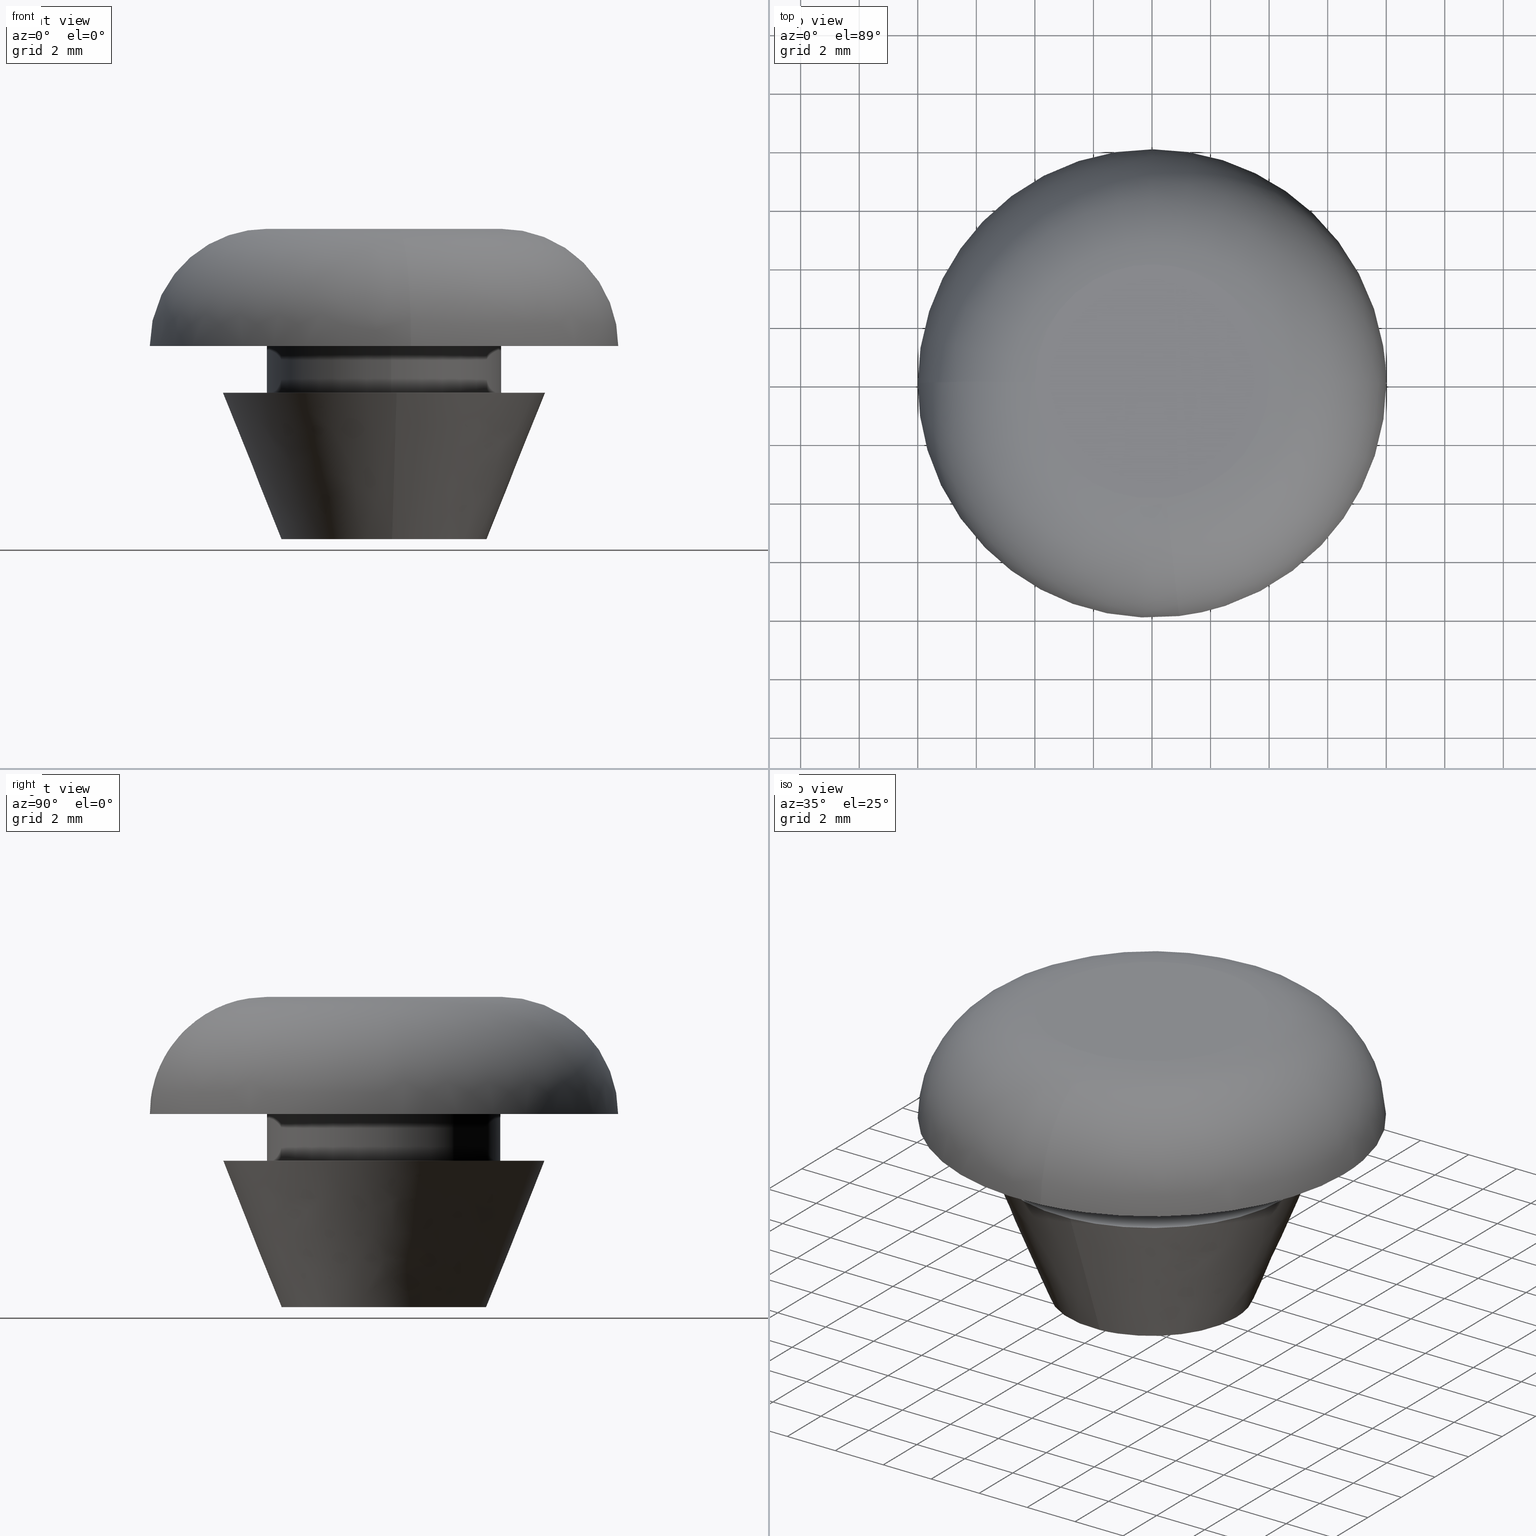
[diagram: canonical four-view strip — front | top / right | iso, engineering-drawing reading convention]
A machine part, canonical four-view strip (front | top / right | iso — engineering-drawing reading convention). The complete STEP part file that produces these views, byte-faithful:
ISO-10303-21;
HEADER;
/****************************************************************
 * Generated by software with PDE/Lib inside                    *
 * PDElib Version 4.4.1-0003, patched  Thursday August 19 11:58 *
 * International Technegroup Inc. (www.iti-oh.com)              *
 ****************************************************************/
FILE_DESCRIPTION((''),'2;1');
FILE_NAME('','2005-12-15T09:45:50',(''),(''),'','CADfix','');
FILE_SCHEMA(('AUTOMOTIVE_DESIGN'));
ENDSEC;
DATA;
#5=APPLICATION_CONTEXT('automotive design');
#6=APPLICATION_PROTOCOL_DEFINITION('Draft International Standard','automotive_design',1998,#5);
#7=PRODUCT_CONTEXT('None',#5,'mechanical');
#8=PRODUCT('cushion','','None',(#7));
#9=PRODUCT_RELATED_PRODUCT_CATEGORY('part','description',(#8));
#10=PRODUCT_DEFINITION_FORMATION('None','None',#8);
#11=PRODUCT_DEFINITION_CONTEXT('part definition',#5,'design');
#12=PRODUCT_DEFINITION('None','None',#10,#11);
#18=(NAMED_UNIT(*)PLANE_ANGLE_UNIT()SI_UNIT($,.RADIAN.));
#19=DIMENSIONAL_EXPONENTS(0.0,0.0,0.0,0.0,0.0,0.0,0.0);
#20=PLANE_ANGLE_MEASURE_WITH_UNIT(PLANE_ANGLE_MEASURE(0.017453292500000),#18);
#24=(CONVERSION_BASED_UNIT('DEGREE',#20)NAMED_UNIT(#19)PLANE_ANGLE_UNIT());
#28=(NAMED_UNIT(*)SI_UNIT($,.STERADIAN.)SOLID_ANGLE_UNIT());
#32=(LENGTH_UNIT()NAMED_UNIT(*)SI_UNIT(.MILLI.,.METRE.));
#34=UNCERTAINTY_MEASURE_WITH_UNIT(LENGTH_MEASURE(0.001000000000000),#32,'DISTANCE_ACCURACY_VALUE','');
#36=(GEOMETRIC_REPRESENTATION_CONTEXT(3)GLOBAL_UNCERTAINTY_ASSIGNED_CONTEXT((#34))GLOBAL_UNIT_ASSIGNED_CONTEXT((#24,#28,#32))REPRESENTATION_CONTEXT('None','None'));
#37=AXIS2_PLACEMENT_3D('',#38,#39,#40);
#38=CARTESIAN_POINT('',(0.0,0.0,0.0));
#39=DIRECTION('',(0.0,0.0,1.0));
#40=DIRECTION('',(1.0,0.0,0.0));
#41=ADVANCED_BREP_SHAPE_REPRESENTATION('',(#37,#891),#36);
#42=PRODUCT_DEFINITION_SHAPE('','',#12);
#43=SHAPE_DEFINITION_REPRESENTATION(#42,#41);
#44=CARTESIAN_POINT('',(0.295085586641896,-2.482523815909166,6.765000000000001));
#45=CARTESIAN_POINT('',(0.224036821594944,-2.490969038621514,6.765000000000000));
#46=CARTESIAN_POINT('',(0.152621348837143,-2.495336996054667,6.765000000000000));
#47=CARTESIAN_POINT('',(-2.342715647217524,-2.647958344891809,6.765000000000002));
#48=CARTESIAN_POINT('',(-2.495336996054667,-0.152621348837143,6.765000000000000));
#49=CARTESIAN_POINT('',(-2.647958344891809,2.342715647217524,6.765000000000002));
#50=CARTESIAN_POINT('',(-0.152621348837143,2.495336996054667,6.765000000000000));
#51=CARTESIAN_POINT('',(0.295085586641896,-2.482523815909166,-0.169125000000000));
#52=CARTESIAN_POINT('',(0.224036821594944,-2.490969038621514,-0.169125000000000));
#53=CARTESIAN_POINT('',(0.152621348837143,-2.495336996054667,-0.169125000000000));
#54=CARTESIAN_POINT('',(-2.342715647217524,-2.647958344891809,-0.169125000000000));
#55=CARTESIAN_POINT('',(-2.495336996054667,-0.152621348837143,-0.169125000000000));
#56=CARTESIAN_POINT('',(-2.647958344891809,2.342715647217524,-0.169125000000000));
#57=CARTESIAN_POINT('',(-0.152621348837143,2.495336996054667,-0.169125000000000));
#65=(BOUNDED_SURFACE()B_SPLINE_SURFACE(2,1,((#44,#51),(#45,#52),(#46,#53),(#47,#54),(#48,#55),(#49,#56),(#50,#57)),.UNSPECIFIED.,.F.,.F.,.U.)B_SPLINE_SURFACE_WITH_KNOTS((3,2,2,3),(2,2),(0.0,0.165685424949238,4.307821048680188,8.449956672411137),(0.0,6.934125000000001),.UNSPECIFIED.)GEOMETRIC_REPRESENTATION_ITEM()RATIONAL_B_SPLINE_SURFACE(((0.977505800795127,0.977505800795127),(0.988284271247462,0.988284271247462),(1.0,1.0),(0.707106781186548,0.707106781186548),(1.0,1.0),(0.707106781186548,0.707106781186548),(1.0,1.0)))REPRESENTATION_ITEM('')SURFACE());
#66=CARTESIAN_POINT('',(0.295084395325609,-2.482523957514585,6.599999999999996));
#67=VERTEX_POINT('',#66);
#68=CARTESIAN_POINT('',(-2.500000000000000,0.0,6.600000000000000));
#69=VERTEX_POINT('',#68);
#70=CARTESIAN_POINT('',(0.295084395325609,-2.482523957514585,6.599999999999996));
#71=CARTESIAN_POINT('',(0.148059697174453,-2.500000000000000,6.600000000000000));
#72=CARTESIAN_POINT('',(0.0,-2.500000000000000,6.600000000000000));
#73=CARTESIAN_POINT('',(-2.500000000000000,-2.500000000000000,6.599999999999999));
#74=CARTESIAN_POINT('',(-2.500000000000000,0.0,6.600000000000000));
#82=(BOUNDED_CURVE()B_SPLINE_CURVE(2,(#70,#71,#72,#73,#74),.UNSPECIFIED.,.F.,.U.)B_SPLINE_CURVE_WITH_KNOTS((3,2,3),(0.229562554617114,0.250000000000000,0.500000000000000),.UNSPECIFIED.)CURVE()GEOMETRIC_REPRESENTATION_ITEM()RATIONAL_B_SPLINE_CURVE((0.956026913150147,0.976056043349929,1.0,0.707106781186548,1.0))REPRESENTATION_ITEM(''));
#83=EDGE_CURVE('',#67,#69,#82,.T.);
#84=ORIENTED_EDGE('',*,*,#83,.F.);
#85=CARTESIAN_POINT('',(0.295084409657038,-2.482523955811091,3.549285E-016));
#86=VERTEX_POINT('',#85);
#87=CARTESIAN_POINT('',(0.295084395325609,-2.482523957514585,6.599999999999996));
#88=CARTESIAN_POINT('',(0.295084409657038,-2.482523955811091,3.549285E-016));
#89=QUASI_UNIFORM_CURVE('',1,(#87,#88),.UNSPECIFIED.,.F.,.U.);
#90=EDGE_CURVE('',#67,#86,#89,.T.);
#91=ORIENTED_EDGE('',*,*,#90,.T.);
#92=CARTESIAN_POINT('',(-2.500000000000000,0.0,0.0));
#93=VERTEX_POINT('',#92);
#94=CARTESIAN_POINT('',(0.295084409657038,-2.482523955811091,3.549285E-016));
#95=CARTESIAN_POINT('',(0.148059704415921,-2.500000000000000,0.0));
#96=CARTESIAN_POINT('',(0.0,-2.500000000000000,0.0));
#97=CARTESIAN_POINT('',(-2.500000000000000,-2.500000000000000,0.0));
#98=CARTESIAN_POINT('',(-2.500000000000000,0.0,0.0));
#106=(BOUNDED_CURVE()B_SPLINE_CURVE(2,(#94,#95,#96,#97,#98),.UNSPECIFIED.,.F.,.U.)B_SPLINE_CURVE_WITH_KNOTS((3,2,3),(0.229562553641470,0.250000000000000,0.500000000000000),.UNSPECIFIED.)CURVE()GEOMETRIC_REPRESENTATION_ITEM()RATIONAL_B_SPLINE_CURVE((0.956026911237844,0.976056042206892,1.0,0.707106781186548,1.0))REPRESENTATION_ITEM(''));
#107=EDGE_CURVE('',#86,#93,#106,.T.);
#108=ORIENTED_EDGE('',*,*,#107,.T.);
#109=CARTESIAN_POINT('',(-0.152621348847324,2.495336996054045,-1.387779E-017));
#110=VERTEX_POINT('',#109);
#111=CARTESIAN_POINT('',(-2.500000000000000,0.0,0.0));
#112=CARTESIAN_POINT('',(-2.500000000000000,2.351765167244999,0.0));
#113=CARTESIAN_POINT('',(-0.152621348847324,2.495336996054044,-1.387779E-017));
#121=(BOUNDED_CURVE()B_SPLINE_CURVE(2,(#111,#112,#113),.UNSPECIFIED.,.F.,.U.)B_SPLINE_CURVE_WITH_KNOTS((3,3),(0.500000000000000,0.739332962240559),.UNSPECIFIED.)CURVE()GEOMETRIC_REPRESENTATION_ITEM()RATIONAL_B_SPLINE_CURVE((1.0,0.719603993284816,0.976072041670182))REPRESENTATION_ITEM(''));
#122=EDGE_CURVE('',#93,#110,#121,.T.);
#123=ORIENTED_EDGE('',*,*,#122,.T.);
#124=CARTESIAN_POINT('',(-0.152621348847323,2.495336996054045,6.600000000000000));
#125=VERTEX_POINT('',#124);
#126=CARTESIAN_POINT('',(-0.152621348847323,2.495336996054045,6.600000000000000));
#127=CARTESIAN_POINT('',(-0.152621348847324,2.495336996054045,-1.387779E-017));
#128=QUASI_UNIFORM_CURVE('',1,(#126,#127),.UNSPECIFIED.,.F.,.U.);
#129=EDGE_CURVE('',#125,#110,#128,.T.);
#130=ORIENTED_EDGE('',*,*,#129,.F.);
#131=CARTESIAN_POINT('',(-2.500000000000000,0.0,6.600000000000000));
#132=CARTESIAN_POINT('',(-2.500000000000000,2.351765167244999,6.599999999999999));
#133=CARTESIAN_POINT('',(-0.152621348847323,2.495336996054044,6.600000000000000));
#141=(BOUNDED_CURVE()B_SPLINE_CURVE(2,(#131,#132,#133),.UNSPECIFIED.,.F.,.U.)B_SPLINE_CURVE_WITH_KNOTS((3,3),(0.500000000000000,0.739332962240559),.UNSPECIFIED.)CURVE()GEOMETRIC_REPRESENTATION_ITEM()RATIONAL_B_SPLINE_CURVE((1.0,0.719603993284816,0.976072041670182))REPRESENTATION_ITEM(''));
#142=EDGE_CURVE('',#69,#125,#141,.T.);
#143=ORIENTED_EDGE('',*,*,#142,.F.);
#144=EDGE_LOOP('',(#84,#91,#108,#123,#130,#143));
#145=FACE_OUTER_BOUND('',#144,.T.);
#146=ADVANCED_FACE('',(#145),#65,.F.);
#147=CARTESIAN_POINT('',(-0.152621348837143,2.495336996054667,6.765000000000000));
#148=CARTESIAN_POINT('',(2.342715647217524,2.647958344891809,6.765000000000002));
#149=CARTESIAN_POINT('',(2.495336996054667,0.152621348837143,6.765000000000000));
#150=CARTESIAN_POINT('',(2.639465491831319,-2.203858727098751,6.765000000000001));
#151=CARTESIAN_POINT('',(0.295085586641896,-2.482523815909166,6.765000000000001));
#152=CARTESIAN_POINT('',(-0.152621348837143,2.495336996054667,-0.169125000000000));
#153=CARTESIAN_POINT('',(2.342715647217524,2.647958344891809,-0.169125000000000));
#154=CARTESIAN_POINT('',(2.495336996054667,0.152621348837143,-0.169125000000000));
#155=CARTESIAN_POINT('',(2.639465491831319,-2.203858727098751,-0.169125000000000));
#156=CARTESIAN_POINT('',(0.295085586641896,-2.482523815909166,-0.169125000000000));
#164=(BOUNDED_SURFACE()B_SPLINE_SURFACE(2,1,((#147,#152),(#148,#153),(#149,#154),(#150,#155),(#151,#156)),.UNSPECIFIED.,.F.,.F.,.U.)B_SPLINE_SURFACE_WITH_KNOTS((3,2,3),(2,2),(0.0,4.142135623730949,8.118585822512660),(0.0,6.934125000000001),.UNSPECIFIED.)GEOMETRIC_REPRESENTATION_ITEM()RATIONAL_B_SPLINE_SURFACE(((1.0,1.0),(0.707106781186548,0.707106781186548),(1.0,1.0),(0.718822509939086,0.718822509939086),(0.977505800795127,0.977505800795127)))REPRESENTATION_ITEM('')SURFACE());
#165=CARTESIAN_POINT('',(2.500000000000000,0.0,6.600000000000000));
#166=VERTEX_POINT('',#165);
#167=CARTESIAN_POINT('',(2.500000000000000,0.0,6.600000000000000));
#168=CARTESIAN_POINT('',(2.500000000000000,-2.220437387925136,6.599999999999999));
#169=CARTESIAN_POINT('',(0.295084395325609,-2.482523957514585,6.599999999999996));
#177=(BOUNDED_CURVE()B_SPLINE_CURVE(2,(#167,#168,#169),.UNSPECIFIED.,.F.,.U.)B_SPLINE_CURVE_WITH_KNOTS((3,3),(0.0,0.229562554617114),.UNSPECIFIED.)CURVE()GEOMETRIC_REPRESENTATION_ITEM()RATIONAL_B_SPLINE_CURVE((1.0,0.731050737836618,0.956026913150147))REPRESENTATION_ITEM(''));
#178=EDGE_CURVE('',#166,#67,#177,.T.);
#179=ORIENTED_EDGE('',*,*,#178,.F.);
#180=CARTESIAN_POINT('',(-0.152621348847323,2.495336996054045,6.600000000000000));
#181=CARTESIAN_POINT('',(-0.076381908256682,2.500000000000000,6.600000000000000));
#182=CARTESIAN_POINT('',(0.0,2.500000000000000,6.600000000000000));
#183=CARTESIAN_POINT('',(2.500000000000000,2.500000000000000,6.599999999999999));
#184=CARTESIAN_POINT('',(2.500000000000000,0.0,6.600000000000000));
#192=(BOUNDED_CURVE()B_SPLINE_CURVE(2,(#180,#181,#182,#183,#184),.UNSPECIFIED.,.F.,.U.)B_SPLINE_CURVE_WITH_KNOTS((3,2,3),(0.739332962240560,0.750000000000000,1.0),.UNSPECIFIED.)CURVE()GEOMETRIC_REPRESENTATION_ITEM()RATIONAL_B_SPLINE_CURVE((0.976072041670184,0.987502787901732,1.0,0.707106781186548,1.0))REPRESENTATION_ITEM(''));
#193=EDGE_CURVE('',#125,#166,#192,.T.);
#194=ORIENTED_EDGE('',*,*,#193,.F.);
#195=ORIENTED_EDGE('',*,*,#129,.T.);
#196=CARTESIAN_POINT('',(2.500000000000000,0.0,0.0));
#197=VERTEX_POINT('',#196);
#198=CARTESIAN_POINT('',(-0.152621348847324,2.495336996054044,-1.387779E-017));
#199=CARTESIAN_POINT('',(-0.076381908256682,2.500000000000000,0.0));
#200=CARTESIAN_POINT('',(0.0,2.500000000000000,0.0));
#201=CARTESIAN_POINT('',(2.500000000000000,2.500000000000000,0.0));
#202=CARTESIAN_POINT('',(2.500000000000000,0.0,0.0));
#210=(BOUNDED_CURVE()B_SPLINE_CURVE(2,(#198,#199,#200,#201,#202),.UNSPECIFIED.,.F.,.U.)B_SPLINE_CURVE_WITH_KNOTS((3,2,3),(0.739332962240560,0.750000000000000,1.0),.UNSPECIFIED.)CURVE()GEOMETRIC_REPRESENTATION_ITEM()RATIONAL_B_SPLINE_CURVE((0.976072041670184,0.987502787901732,1.0,0.707106781186548,1.0))REPRESENTATION_ITEM(''));
#211=EDGE_CURVE('',#110,#197,#210,.T.);
#212=ORIENTED_EDGE('',*,*,#211,.T.);
#213=CARTESIAN_POINT('',(2.500000000000000,0.0,0.0));
#214=CARTESIAN_POINT('',(2.500000000000000,-2.220437375016478,0.0));
#215=CARTESIAN_POINT('',(0.295084409657038,-2.482523955811091,3.549285E-016));
#223=(BOUNDED_CURVE()B_SPLINE_CURVE(2,(#213,#214,#215),.UNSPECIFIED.,.F.,.U.)B_SPLINE_CURVE_WITH_KNOTS((3,3),(0.0,0.229562553641470),.UNSPECIFIED.)CURVE()GEOMETRIC_REPRESENTATION_ITEM()RATIONAL_B_SPLINE_CURVE((1.0,0.731050738979656,0.956026911237844))REPRESENTATION_ITEM(''));
#224=EDGE_CURVE('',#197,#86,#223,.T.);
#225=ORIENTED_EDGE('',*,*,#224,.T.);
#226=ORIENTED_EDGE('',*,*,#90,.F.);
#227=EDGE_LOOP('',(#179,#194,#195,#212,#225,#226));
#228=FACE_OUTER_BOUND('',#227,.T.);
#229=ADVANCED_FACE('',(#228),#164,.F.);
#230=CARTESIAN_POINT('',(-0.472136938627034,3.972038105454666,6.640000000000002));
#231=CARTESIAN_POINT('',(-0.358458914551911,3.985550461794422,6.640000000000001));
#232=CARTESIAN_POINT('',(-0.244194158139428,3.992539193687467,6.640000000000001));
#233=CARTESIAN_POINT('',(3.748345035548039,4.236733351826894,6.640000000000001));
#234=CARTESIAN_POINT('',(3.992539193687467,0.244194158139428,6.640000000000001));
#235=CARTESIAN_POINT('',(4.236733351826894,-3.748345035548039,6.640000000000001));
#236=CARTESIAN_POINT('',(0.244194158139428,-3.992539193687467,6.640000000000001));
#237=CARTESIAN_POINT('',(-0.472136938627034,3.972038105454666,4.959000000000000));
#238=CARTESIAN_POINT('',(-0.358458914551911,3.985550461794422,4.958999999999999));
#239=CARTESIAN_POINT('',(-0.244194158139428,3.992539193687467,4.958999999999999));
#240=CARTESIAN_POINT('',(3.748345035548039,4.236733351826894,4.959000000000000));
#241=CARTESIAN_POINT('',(3.992539193687467,0.244194158139428,4.958999999999999));
#242=CARTESIAN_POINT('',(4.236733351826894,-3.748345035548039,4.959000000000000));
#243=CARTESIAN_POINT('',(0.244194158139428,-3.992539193687467,4.958999999999999));
#251=(BOUNDED_SURFACE()B_SPLINE_SURFACE(2,1,((#230,#237),(#231,#238),(#232,#239),(#233,#240),(#234,#241),(#235,#242),(#236,#243)),.UNSPECIFIED.,.F.,.F.,.U.)B_SPLINE_SURFACE_WITH_KNOTS((3,2,2,3),(2,2),(0.0,0.265096679918781,6.892513677888299,13.519930675857820),(0.0,1.0),.UNSPECIFIED.)GEOMETRIC_REPRESENTATION_ITEM()RATIONAL_B_SPLINE_SURFACE(((0.977505800795127,0.977505800795127),(0.988284271247462,0.988284271247462),(1.0,1.0),(0.707106781186548,0.707106781186548),(1.0,1.0),(0.707106781186548,0.707106781186548),(1.0,1.0)))REPRESENTATION_ITEM('')SURFACE());
#252=CARTESIAN_POINT('',(-0.472135276174555,3.972038303061637,6.599999999999984));
#253=VERTEX_POINT('',#252);
#254=CARTESIAN_POINT('',(4.0,0.0,6.600000000000000));
#255=VERTEX_POINT('',#254);
#256=CARTESIAN_POINT('',(-0.472135276174555,3.972038303061638,6.599999999999984));
#257=CARTESIAN_POINT('',(-0.236895638593835,4.0,6.600000000000000));
#258=CARTESIAN_POINT('',(0.0,4.0,6.600000000000000));
#259=CARTESIAN_POINT('',(4.000000000000000,4.000000000000000,6.599999999999999));
#260=CARTESIAN_POINT('',(4.0,0.0,6.600000000000000));
#268=(BOUNDED_CURVE()B_SPLINE_CURVE(2,(#256,#257,#258,#259,#260),.UNSPECIFIED.,.F.,.U.)B_SPLINE_CURVE_WITH_KNOTS((3,2,3),(0.229562544250081,0.250000000000000,0.500000000000000),.UNSPECIFIED.)CURVE()GEOMETRIC_REPRESENTATION_ITEM()RATIONAL_B_SPLINE_CURVE((0.956026892830324,0.976056031204195,1.0,0.707106781186548,1.0))REPRESENTATION_ITEM(''));
#269=EDGE_CURVE('',#253,#255,#268,.T.);
#270=ORIENTED_EDGE('',*,*,#269,.T.);
#271=CARTESIAN_POINT('',(0.244191507870781,-3.992539355783076,6.600000000000032));
#272=VERTEX_POINT('',#271);
#273=CARTESIAN_POINT('',(4.0,0.0,6.600000000000000));
#274=CARTESIAN_POINT('',(4.000000000000000,-3.762826770073696,6.599999999999998));
#275=CARTESIAN_POINT('',(0.244191507870781,-3.992539355783075,6.600000000000032));
#283=(BOUNDED_CURVE()B_SPLINE_CURVE(2,(#273,#274,#275),.UNSPECIFIED.,.F.,.U.)B_SPLINE_CURVE_WITH_KNOTS((3,3),(0.500000000000000,0.739333076779450),.UNSPECIFIED.)CURVE()GEOMETRIC_REPRESENTATION_ITEM()RATIONAL_B_SPLINE_CURVE((1.0,0.719603859094159,0.976072287148952))REPRESENTATION_ITEM(''));
#284=EDGE_CURVE('',#255,#272,#283,.T.);
#285=ORIENTED_EDGE('',*,*,#284,.T.);
#286=CARTESIAN_POINT('',(0.244191539836600,-3.992539353828005,5.0));
#287=VERTEX_POINT('',#286);
#288=CARTESIAN_POINT('',(0.244191507870781,-3.992539355783076,6.600000000000032));
#289=CARTESIAN_POINT('',(0.244191539836600,-3.992539353828005,5.0));
#290=QUASI_UNIFORM_CURVE('',1,(#288,#289),.UNSPECIFIED.,.F.,.U.);
#291=EDGE_CURVE('',#272,#287,#290,.T.);
#292=ORIENTED_EDGE('',*,*,#291,.T.);
#293=CARTESIAN_POINT('',(4.0,0.0,5.0));
#294=VERTEX_POINT('',#293);
#295=CARTESIAN_POINT('',(4.0,0.0,5.0));
#296=CARTESIAN_POINT('',(4.0,-3.762826739890751,5.000000000000001));
#297=CARTESIAN_POINT('',(0.244191539836600,-3.992539353828005,5.0));
#305=(BOUNDED_CURVE()B_SPLINE_CURVE(2,(#295,#296,#297),.UNSPECIFIED.,.F.,.U.)B_SPLINE_CURVE_WITH_KNOTS((3,3),(0.500000000000000,0.739333075397974),.UNSPECIFIED.)CURVE()GEOMETRIC_REPRESENTATION_ITEM()RATIONAL_B_SPLINE_CURVE((1.0,0.719603860712659,0.976072284188181))REPRESENTATION_ITEM(''));
#306=EDGE_CURVE('',#294,#287,#305,.T.);
#307=ORIENTED_EDGE('',*,*,#306,.F.);
#308=CARTESIAN_POINT('',(-0.472135296181069,3.972038300683576,5.0));
#309=VERTEX_POINT('',#308);
#310=CARTESIAN_POINT('',(-0.472135296181069,3.972038300683576,5.0));
#311=CARTESIAN_POINT('',(-0.236895648702844,4.000000000000001,5.0));
#312=CARTESIAN_POINT('',(0.0,4.0,5.0));
#313=CARTESIAN_POINT('',(4.000000000000000,4.000000000000000,5.000000000000001));
#314=CARTESIAN_POINT('',(4.0,0.0,5.0));
#322=(BOUNDED_CURVE()B_SPLINE_CURVE(2,(#310,#311,#312,#313,#314),.UNSPECIFIED.,.F.,.U.)B_SPLINE_CURVE_WITH_KNOTS((3,2,3),(0.229562543398839,0.250000000000000,0.500000000000000),.UNSPECIFIED.)CURVE()GEOMETRIC_REPRESENTATION_ITEM()RATIONAL_B_SPLINE_CURVE((0.956026891161853,0.976056030206903,1.0,0.707106781186548,1.0))REPRESENTATION_ITEM(''));
#323=EDGE_CURVE('',#309,#294,#322,.T.);
#324=ORIENTED_EDGE('',*,*,#323,.F.);
#325=CARTESIAN_POINT('',(-0.472135276174555,3.972038303061637,6.599999999999984));
#326=CARTESIAN_POINT('',(-0.472135296181069,3.972038300683576,5.0));
#327=QUASI_UNIFORM_CURVE('',1,(#325,#326),.UNSPECIFIED.,.F.,.U.);
#328=EDGE_CURVE('',#253,#309,#327,.T.);
#329=ORIENTED_EDGE('',*,*,#328,.F.);
#330=EDGE_LOOP('',(#270,#285,#292,#307,#324,#329));
#331=FACE_OUTER_BOUND('',#330,.T.);
#332=ADVANCED_FACE('',(#331),#251,.T.);
#333=CARTESIAN_POINT('',(0.244194158139428,-3.992539193687467,6.640000000000001));
#334=CARTESIAN_POINT('',(-3.748345035548039,-4.236733351826894,6.640000000000001));
#335=CARTESIAN_POINT('',(-3.992539193687467,-0.244194158139428,6.640000000000001));
#336=CARTESIAN_POINT('',(-4.223144786930110,3.526173963358004,6.640000000000000));
#337=CARTESIAN_POINT('',(-0.472136938627034,3.972038105454666,6.640000000000002));
#338=CARTESIAN_POINT('',(0.244194158139428,-3.992539193687467,4.958999999999999));
#339=CARTESIAN_POINT('',(-3.748345035548039,-4.236733351826894,4.959000000000000));
#340=CARTESIAN_POINT('',(-3.992539193687467,-0.244194158139428,4.958999999999999));
#341=CARTESIAN_POINT('',(-4.223144786930110,3.526173963358004,4.958999999999999));
#342=CARTESIAN_POINT('',(-0.472136938627034,3.972038105454666,4.959000000000000));
#350=(BOUNDED_SURFACE()B_SPLINE_SURFACE(2,1,((#333,#338),(#334,#339),(#335,#340),(#336,#341),(#337,#342)),.UNSPECIFIED.,.F.,.F.,.U.)B_SPLINE_SURFACE_WITH_KNOTS((3,2,3),(2,2),(0.0,6.627416997969518,12.989737316020260),(0.0,1.0),.UNSPECIFIED.)GEOMETRIC_REPRESENTATION_ITEM()RATIONAL_B_SPLINE_SURFACE(((1.0,1.0),(0.707106781186548,0.707106781186548),(1.0,1.0),(0.718822509939086,0.718822509939086),(0.977505800795127,0.977505800795127)))REPRESENTATION_ITEM('')SURFACE());
#351=CARTESIAN_POINT('',(-4.0,0.0,6.600000000000000));
#352=VERTEX_POINT('',#351);
#353=CARTESIAN_POINT('',(-4.0,0.0,6.600000000000000));
#354=CARTESIAN_POINT('',(-4.0,3.552699601215653,6.600000000000000));
#355=CARTESIAN_POINT('',(-0.472135276174555,3.972038303061638,6.599999999999984));
#363=(BOUNDED_CURVE()B_SPLINE_CURVE(2,(#353,#354,#355),.UNSPECIFIED.,.F.,.U.)B_SPLINE_CURVE_WITH_KNOTS((3,3),(0.0,0.229562544250081),.UNSPECIFIED.)CURVE()GEOMETRIC_REPRESENTATION_ITEM()RATIONAL_B_SPLINE_CURVE((1.0,0.731050749982353,0.956026892830324))REPRESENTATION_ITEM(''));
#364=EDGE_CURVE('',#352,#253,#363,.T.);
#365=ORIENTED_EDGE('',*,*,#364,.T.);
#366=ORIENTED_EDGE('',*,*,#328,.T.);
#367=CARTESIAN_POINT('',(-4.0,0.0,5.0));
#368=VERTEX_POINT('',#367);
#369=CARTESIAN_POINT('',(-4.0,0.0,5.0));
#370=CARTESIAN_POINT('',(-4.000000000000001,3.552699583195312,5.0));
#371=CARTESIAN_POINT('',(-0.472135296181069,3.972038300683576,5.0));
#379=(BOUNDED_CURVE()B_SPLINE_CURVE(2,(#369,#370,#371),.UNSPECIFIED.,.F.,.U.)B_SPLINE_CURVE_WITH_KNOTS((3,3),(0.0,0.229562543398839),.UNSPECIFIED.)CURVE()GEOMETRIC_REPRESENTATION_ITEM()RATIONAL_B_SPLINE_CURVE((1.0,0.731050750979645,0.956026891161853))REPRESENTATION_ITEM(''));
#380=EDGE_CURVE('',#368,#309,#379,.T.);
#381=ORIENTED_EDGE('',*,*,#380,.F.);
#382=CARTESIAN_POINT('',(0.244191539836600,-3.992539353828005,5.0));
#383=CARTESIAN_POINT('',(0.122209740372274,-4.000000000000000,4.999999999999999));
#384=CARTESIAN_POINT('',(0.0,-4.0,5.0));
#385=CARTESIAN_POINT('',(-4.000000000000000,-4.000000000000000,5.000000000000001));
#386=CARTESIAN_POINT('',(-4.0,0.0,5.0));
#394=(BOUNDED_CURVE()B_SPLINE_CURVE(2,(#382,#383,#384,#385,#386),.UNSPECIFIED.,.F.,.U.)B_SPLINE_CURVE_WITH_KNOTS((3,2,3),(0.739333075397974,0.750000000000000,1.0),.UNSPECIFIED.)CURVE()GEOMETRIC_REPRESENTATION_ITEM()RATIONAL_B_SPLINE_CURVE((0.976072284188181,0.987502920473888,1.0,0.707106781186548,1.0))REPRESENTATION_ITEM(''));
#395=EDGE_CURVE('',#287,#368,#394,.T.);
#396=ORIENTED_EDGE('',*,*,#395,.F.);
#397=ORIENTED_EDGE('',*,*,#291,.F.);
#398=CARTESIAN_POINT('',(0.244191507870781,-3.992539355783075,6.600000000000032));
#399=CARTESIAN_POINT('',(0.122209724344552,-4.0,6.600000000000000));
#400=CARTESIAN_POINT('',(0.0,-4.0,6.600000000000000));
#401=CARTESIAN_POINT('',(-4.000000000000000,-4.000000000000000,6.599999999999999));
#402=CARTESIAN_POINT('',(-4.0,0.0,6.600000000000000));
#410=(BOUNDED_CURVE()B_SPLINE_CURVE(2,(#398,#399,#400,#401,#402),.UNSPECIFIED.,.F.,.U.)B_SPLINE_CURVE_WITH_KNOTS((3,2,3),(0.739333076779450,0.750000000000000,1.0),.UNSPECIFIED.)CURVE()GEOMETRIC_REPRESENTATION_ITEM()RATIONAL_B_SPLINE_CURVE((0.976072287148952,0.987502922092389,1.0,0.707106781186548,1.0))REPRESENTATION_ITEM(''));
#411=EDGE_CURVE('',#272,#352,#410,.T.);
#412=ORIENTED_EDGE('',*,*,#411,.T.);
#413=EDGE_LOOP('',(#365,#366,#381,#396,#397,#412));
#414=FACE_OUTER_BOUND('',#413,.T.);
#415=ADVANCED_FACE('',(#414),#350,.T.);
#416=CARTESIAN_POINT('',(-0.222321621183772,3.443170993714569,-0.125000000000000));
#417=CARTESIAN_POINT('',(-0.246432124522197,3.441273455949432,-0.125000000000000));
#418=CARTESIAN_POINT('',(-3.710048681640357,3.168680921118223,-0.125000000000000));
#419=CARTESIAN_POINT('',(-3.439364801379290,-0.270683880261067,-0.125000000000000));
#420=CARTESIAN_POINT('',(-3.168680921118223,-3.710048681640357,-0.125000000000000));
#421=CARTESIAN_POINT('',(0.294932292382481,-3.437456409957548,-0.125000000000000));
#422=CARTESIAN_POINT('',(0.319039490993328,-3.435559132280113,-0.125000000000000));
#423=CARTESIAN_POINT('',(-0.357728376694613,5.540261733002319,5.128125000000003));
#424=CARTESIAN_POINT('',(-0.396523574276477,5.537208484736025,5.128124999999998));
#425=CARTESIAN_POINT('',(-5.969683404045228,5.098591293726822,5.128125000000001));
#426=CARTESIAN_POINT('',(-5.534137348886025,-0.435546055159203,5.128125000000001));
#427=CARTESIAN_POINT('',(-5.098591293726822,-5.969683404045228,5.128125000000001));
#428=CARTESIAN_POINT('',(0.474563155967608,-5.531066636457054,5.128125000000000));
#429=CARTESIAN_POINT('',(0.513353036051220,-5.528013806686950,5.128124999999999));
#437=(BOUNDED_SURFACE()B_SPLINE_SURFACE(2,1,((#416,#423),(#417,#424),(#418,#425),(#419,#426),(#420,#427),(#421,#428),(#422,#429)),.UNSPECIFIED.,.F.,.F.,.U.)B_SPLINE_SURFACE_WITH_KNOTS((3,1,2,1,3),(2,2),(0.0,0.091986763704840,9.289598916199411,18.487211068693981,18.579185112933100),(0.0,5.657865924875689),.UNSPECIFIED.)GEOMETRIC_REPRESENTATION_ITEM()RATIONAL_B_SPLINE_SURFACE(((1.005858542165737,1.005858542165737),(1.002929271082869,1.002929271082869),(0.707106781186548,0.707106781186548),(1.0,1.0),(0.707106781186548,0.707106781186548),(1.002928866038038,1.002928866038038),(1.005857732076076,1.005857732076076)))REPRESENTATION_ITEM('')SURFACE());
#438=CARTESIAN_POINT('',(-3.500000000000000,0.0,0.0));
#439=VERTEX_POINT('',#438);
#440=CARTESIAN_POINT('',(-0.274600980489155,3.489208997300468,-0.000005312372791));
#441=VERTEX_POINT('',#440);
#442=CARTESIAN_POINT('',(-3.500000000000000,0.0,0.0));
#443=CARTESIAN_POINT('',(-3.499999916640751,3.235370951957149,-0.000002656186396));
#444=CARTESIAN_POINT('',(-0.274600980489155,3.489208997300468,-0.000005312372791));
#452=(BOUNDED_CURVE()B_SPLINE_CURVE(2,(#442,#443,#444),.UNSPECIFIED.,.F.,.U.)B_SPLINE_CURVE_WITH_KNOTS((3,3),(0.0,0.236331580075702),.UNSPECIFIED.)CURVE()GEOMETRIC_REPRESENTATION_ITEM()RATIONAL_B_SPLINE_CURVE((1.0,0.723120331217434,0.969723939348634))REPRESENTATION_ITEM(''));
#453=EDGE_CURVE('',#439,#441,#452,.T.);
#454=ORIENTED_EDGE('',*,*,#453,.F.);
#455=CARTESIAN_POINT('',(0.274600980489155,-3.489208997300468,-0.000005312372791));
#456=VERTEX_POINT('',#455);
#457=CARTESIAN_POINT('',(0.274600980489156,-3.489208997300468,-0.000005312372791));
#458=CARTESIAN_POINT('',(0.137512353718483,-3.499997920065321,-0.000005215903538));
#459=CARTESIAN_POINT('',(-0.000000160415873,-3.499997961680607,-0.000005111543859));
#460=CARTESIAN_POINT('',(-3.500000077056623,-3.499999020882365,-0.000002455357463));
#461=CARTESIAN_POINT('',(-3.500000000000000,0.0,0.0));
#469=(BOUNDED_CURVE()B_SPLINE_CURVE(2,(#457,#458,#459,#460,#461),.UNSPECIFIED.,.F.,.U.)B_SPLINE_CURVE_WITH_KNOTS((3,2,3),(0.736331580075702,0.750000000000000,1.0),.UNSPECIFIED.)CURVE()GEOMETRIC_REPRESENTATION_ITEM()RATIONAL_B_SPLINE_CURVE((0.969723939348634,0.983986449969113,1.0,0.707106781186547,1.0))REPRESENTATION_ITEM(''));
#470=EDGE_CURVE('',#456,#439,#469,.T.);
#471=ORIENTED_EDGE('',*,*,#470,.F.);
#472=CARTESIAN_POINT('',(0.431523188758528,-5.483044809921816,4.999998329556744));
#473=VERTEX_POINT('',#472);
#474=CARTESIAN_POINT('',(0.274600980489155,-3.489208997300468,-0.000005312372791));
#475=CARTESIAN_POINT('',(0.431523188758528,-5.483044809921816,4.999998329556744));
#476=QUASI_UNIFORM_CURVE('',1,(#474,#475),.UNSPECIFIED.,.F.,.U.);
#477=EDGE_CURVE('',#456,#473,#476,.T.);
#478=ORIENTED_EDGE('',*,*,#477,.T.);
#479=CARTESIAN_POINT('',(-5.500000000000000,0.0,5.0));
#480=VERTEX_POINT('',#479);
#481=CARTESIAN_POINT('',(0.431523188758528,-5.483044809921816,4.999998329556744));
#482=CARTESIAN_POINT('',(0.216094640267148,-5.499999345978611,4.999998359891379));
#483=CARTESIAN_POINT('',(-0.000000050442510,-5.499999359064478,4.999998392707190));
#484=CARTESIAN_POINT('',(-5.500000024230313,-5.499999692123399,4.999999227928817));
#485=CARTESIAN_POINT('',(-5.500000000000000,0.0,5.0));
#493=(BOUNDED_CURVE()B_SPLINE_CURVE(2,(#481,#482,#483,#484,#485),.UNSPECIFIED.,.F.,.U.)B_SPLINE_CURVE_WITH_KNOTS((3,2,3),(0.736331356449855,0.750000000000000,1.0),.UNSPECIFIED.)CURVE()GEOMETRIC_REPRESENTATION_ITEM()RATIONAL_B_SPLINE_CURVE((0.969723472657849,0.983986187975137,1.0,0.707106781186548,1.0))REPRESENTATION_ITEM(''));
#494=EDGE_CURVE('',#473,#480,#493,.T.);
#495=ORIENTED_EDGE('',*,*,#494,.T.);
#496=CARTESIAN_POINT('',(-0.431523188758529,5.483044809921818,4.999998329556744));
#497=VERTEX_POINT('',#496);
#498=CARTESIAN_POINT('',(-5.500000000000000,0.0,5.0));
#499=CARTESIAN_POINT('',(-5.499999973787804,5.084149031616583,4.999999164778371));
#500=CARTESIAN_POINT('',(-0.431523188758529,5.483044809921819,4.999998329556744));
#508=(BOUNDED_CURVE()B_SPLINE_CURVE(2,(#498,#499,#500),.UNSPECIFIED.,.F.,.U.)B_SPLINE_CURVE_WITH_KNOTS((3,3),(0.0,0.236331356449855),.UNSPECIFIED.)CURVE()GEOMETRIC_REPRESENTATION_ITEM()RATIONAL_B_SPLINE_CURVE((1.0,0.723120593211411,0.969723472657849))REPRESENTATION_ITEM(''));
#509=EDGE_CURVE('',#480,#497,#508,.T.);
#510=ORIENTED_EDGE('',*,*,#509,.T.);
#511=CARTESIAN_POINT('',(-0.274600980489155,3.489208997300468,-0.000005312372791));
#512=CARTESIAN_POINT('',(-0.431523188758529,5.483044809921818,4.999998329556744));
#513=QUASI_UNIFORM_CURVE('',1,(#511,#512),.UNSPECIFIED.,.F.,.U.);
#514=EDGE_CURVE('',#441,#497,#513,.T.);
#515=ORIENTED_EDGE('',*,*,#514,.F.);
#516=EDGE_LOOP('',(#454,#471,#478,#495,#510,#515));
#517=FACE_OUTER_BOUND('',#516,.T.);
#518=ADVANCED_FACE('',(#517),#437,.T.);
#519=CARTESIAN_POINT('',(0.222321621183587,-3.443170993714580,-0.125000000000000));
#520=CARTESIAN_POINT('',(0.246432124522104,-3.441273455949439,-0.125000000000000));
#521=CARTESIAN_POINT('',(3.710048681640357,-3.168680921118223,-0.125000000000000));
#522=CARTESIAN_POINT('',(3.439364801379290,0.270683880261067,-0.125000000000000));
#523=CARTESIAN_POINT('',(3.168680921118223,3.710048681640357,-0.125000000000000));
#524=CARTESIAN_POINT('',(-0.294932292382487,3.437456409957549,-0.125000000000000));
#525=CARTESIAN_POINT('',(-0.319039490993339,3.435559132280112,-0.125000000000000));
#526=CARTESIAN_POINT('',(0.357728376694316,-5.540261733002340,5.128125000000000));
#527=CARTESIAN_POINT('',(0.396523574276328,-5.537208484736038,5.128124999999999));
#528=CARTESIAN_POINT('',(5.969683404045228,-5.098591293726822,5.128125000000001));
#529=CARTESIAN_POINT('',(5.534137348886025,0.435546055159203,5.128125000000001));
#530=CARTESIAN_POINT('',(5.098591293726822,5.969683404045228,5.128125000000001));
#531=CARTESIAN_POINT('',(-0.474563155967617,5.531066636457058,5.128125000000003));
#532=CARTESIAN_POINT('',(-0.513353036051238,5.528013806686950,5.128124999999999));
#540=(BOUNDED_SURFACE()B_SPLINE_SURFACE(2,1,((#519,#526),(#520,#527),(#521,#528),(#522,#529),(#523,#530),(#524,#531),(#525,#532)),.UNSPECIFIED.,.F.,.F.,.U.)B_SPLINE_SURFACE_WITH_KNOTS((3,1,2,1,3),(2,2),(0.0,0.091986763705193,9.289598916199767,18.487211068694339,18.579185112933470),(0.0,5.657865924875689),.UNSPECIFIED.)GEOMETRIC_REPRESENTATION_ITEM()RATIONAL_B_SPLINE_SURFACE(((1.005858542165760,1.005858542165760),(1.002929271082880,1.002929271082880),(0.707106781186548,0.707106781186548),(1.0,1.0),(0.707106781186548,0.707106781186548),(1.002928866038038,1.002928866038038),(1.005857732076077,1.005857732076077)))REPRESENTATION_ITEM('')SURFACE());
#541=CARTESIAN_POINT('',(3.500000000000000,0.0,0.0));
#542=VERTEX_POINT('',#541);
#543=CARTESIAN_POINT('',(-0.274600980489155,3.489208997300468,-0.000005312372791));
#544=CARTESIAN_POINT('',(-0.137512353718484,3.499997920065322,-0.000005215903538));
#545=CARTESIAN_POINT('',(0.000000160415872,3.499997961680607,-0.000005111543859));
#546=CARTESIAN_POINT('',(3.500000077056623,3.499999020882365,-0.000002455357463));
#547=CARTESIAN_POINT('',(3.500000000000000,0.0,0.0));
#555=(BOUNDED_CURVE()B_SPLINE_CURVE(2,(#543,#544,#545,#546,#547),.UNSPECIFIED.,.F.,.U.)B_SPLINE_CURVE_WITH_KNOTS((3,2,3),(0.236331580075702,0.250000000000000,0.500000000000000),.UNSPECIFIED.)CURVE()GEOMETRIC_REPRESENTATION_ITEM()RATIONAL_B_SPLINE_CURVE((0.969723939348634,0.983986449969114,1.0,0.707106781186547,1.0))REPRESENTATION_ITEM(''));
#556=EDGE_CURVE('',#441,#542,#555,.T.);
#557=ORIENTED_EDGE('',*,*,#556,.F.);
#558=ORIENTED_EDGE('',*,*,#514,.T.);
#559=CARTESIAN_POINT('',(5.500000000000000,0.0,5.0));
#560=VERTEX_POINT('',#559);
#561=CARTESIAN_POINT('',(-0.431523188758529,5.483044809921819,4.999998329556744));
#562=CARTESIAN_POINT('',(-0.216094640267148,5.499999345978612,4.999998359891378));
#563=CARTESIAN_POINT('',(0.000000050442510,5.499999359064479,4.999998392707188));
#564=CARTESIAN_POINT('',(5.500000024230313,5.499999692123400,4.999999227928816));
#565=CARTESIAN_POINT('',(5.500000000000000,0.0,5.0));
#573=(BOUNDED_CURVE()B_SPLINE_CURVE(2,(#561,#562,#563,#564,#565),.UNSPECIFIED.,.F.,.U.)B_SPLINE_CURVE_WITH_KNOTS((3,2,3),(0.236331356449855,0.250000000000000,0.500000000000000),.UNSPECIFIED.)CURVE()GEOMETRIC_REPRESENTATION_ITEM()RATIONAL_B_SPLINE_CURVE((0.969723472657849,0.983986187975137,1.0,0.707106781186548,1.0))REPRESENTATION_ITEM(''));
#574=EDGE_CURVE('',#497,#560,#573,.T.);
#575=ORIENTED_EDGE('',*,*,#574,.T.);
#576=CARTESIAN_POINT('',(5.500000000000000,0.0,5.0));
#577=CARTESIAN_POINT('',(5.499999973787802,-5.084149031616582,4.999999164778372));
#578=CARTESIAN_POINT('',(0.431523188758528,-5.483044809921816,4.999998329556744));
#586=(BOUNDED_CURVE()B_SPLINE_CURVE(2,(#576,#577,#578),.UNSPECIFIED.,.F.,.U.)B_SPLINE_CURVE_WITH_KNOTS((3,3),(0.500000000000000,0.736331356449855),.UNSPECIFIED.)CURVE()GEOMETRIC_REPRESENTATION_ITEM()RATIONAL_B_SPLINE_CURVE((1.0,0.723120593211411,0.969723472657849))REPRESENTATION_ITEM(''));
#587=EDGE_CURVE('',#560,#473,#586,.T.);
#588=ORIENTED_EDGE('',*,*,#587,.T.);
#589=ORIENTED_EDGE('',*,*,#477,.F.);
#590=CARTESIAN_POINT('',(3.500000000000000,0.0,0.0));
#591=CARTESIAN_POINT('',(3.499999916640751,-3.235370951957147,-0.000002656186396));
#592=CARTESIAN_POINT('',(0.274600980489156,-3.489208997300468,-0.000005312372791));
#600=(BOUNDED_CURVE()B_SPLINE_CURVE(2,(#590,#591,#592),.UNSPECIFIED.,.F.,.U.)B_SPLINE_CURVE_WITH_KNOTS((3,3),(0.500000000000000,0.736331580075702),.UNSPECIFIED.)CURVE()GEOMETRIC_REPRESENTATION_ITEM()RATIONAL_B_SPLINE_CURVE((1.0,0.723120331217434,0.969723939348634))REPRESENTATION_ITEM(''));
#601=EDGE_CURVE('',#542,#456,#600,.T.);
#602=ORIENTED_EDGE('',*,*,#601,.F.);
#603=EDGE_LOOP('',(#557,#558,#575,#588,#589,#602));
#604=FACE_OUTER_BOUND('',#603,.T.);
#605=ADVANCED_FACE('',(#604),#540,.T.);
#606=CARTESIAN_POINT('',(0.923712938591187,-7.946493214436116,6.600000000000001));
#607=CARTESIAN_POINT('',(0.923712938591187,-7.946493214436115,10.599999999999998));
#608=CARTESIAN_POINT('',(0.461856469295593,-3.973246607218058,10.600000000000005));
#609=CARTESIAN_POINT('',(0.445301506950351,-3.830828015417933,10.599999999999998));
#610=CARTESIAN_POINT('',(0.428789030316334,-3.688774918569598,10.589734628122132));
#611=CARTESIAN_POINT('',(0.463406180240287,-8.0,6.599999999999999));
#612=CARTESIAN_POINT('',(0.463406180240287,-8.0,10.599999999999996));
#613=CARTESIAN_POINT('',(0.231703090120143,-4.0,10.599999999999998));
#614=CARTESIAN_POINT('',(0.223397834727563,-3.856622449216822,10.599999999999996));
#615=CARTESIAN_POINT('',(0.215113893468770,-3.713612854403076,10.589734628122132));
#616=CARTESIAN_POINT('',(0.0,-8.0,6.600000000000000));
#617=CARTESIAN_POINT('',(0.0,-8.0,10.600000000000000));
#618=CARTESIAN_POINT('',(0.0,-4.0,10.600000000000000));
#619=CARTESIAN_POINT('',(0.0,-3.856622449216822,10.599999999999998));
#620=CARTESIAN_POINT('',(0.0,-3.713612854403075,10.589734628122129));
#621=CARTESIAN_POINT('',(-8.0,-8.0,6.599999999999999));
#622=CARTESIAN_POINT('',(-8.0,-8.0,10.600000000000000));
#623=CARTESIAN_POINT('',(-4.000000000000000,-4.000000000000000,10.600000000000000));
#624=CARTESIAN_POINT('',(-3.856622449216823,-3.856622449216823,10.599999999999998));
#625=CARTESIAN_POINT('',(-3.713612854403077,-3.713612854403077,10.589734628122129));
#626=CARTESIAN_POINT('',(-8.0,0.0,6.600000000000000));
#627=CARTESIAN_POINT('',(-8.0,0.0,10.600000000000000));
#628=CARTESIAN_POINT('',(-4.0,0.0,10.600000000000000));
#629=CARTESIAN_POINT('',(-3.856622449216822,0.0,10.599999999999998));
#630=CARTESIAN_POINT('',(-3.713612854403075,0.0,10.589734628122129));
#638=(BOUNDED_SURFACE()B_SPLINE_SURFACE(2,2,((#606,#611,#616,#621,#626),(#607,#612,#617,#622,#627),(#608,#613,#618,#623,#628),(#609,#614,#619,#624,#629),(#610,#615,#620,#625,#630)),.UNSPECIFIED.,.F.,.F.,.U.)B_SPLINE_SURFACE_WITH_KNOTS((3,2,3),(3,2,3),(0.0,6.627416997969523,6.958456477018101),(0.0,1.060385708411543,14.315219704350580),.UNSPECIFIED.)GEOMETRIC_REPRESENTATION_ITEM()RATIONAL_B_SPLINE_SURFACE(((0.956886155731908,0.976568564840903,1.0,0.707106781186548,1.0),(0.676620689541559,0.690538254492617,0.707106781186548,0.500000000000000,0.707106781186548),(0.956886155731908,0.976568564840903,1.0,0.707106781186548,1.0),(0.942886895695701,0.962281350839006,0.985369983720268,0.696761797466280,0.985369983720268),(0.930286161737110,0.949421429515899,0.972201506066881,0.687450277619666,0.972201506066881)))REPRESENTATION_ITEM('')SURFACE());
#639=CARTESIAN_POINT('',(0.461853265926444,-3.973246979579745,10.600000000000000));
#640=VERTEX_POINT('',#639);
#641=CARTESIAN_POINT('',(-4.0,0.0,10.600000000000000));
#642=VERTEX_POINT('',#641);
#643=CARTESIAN_POINT('',(0.461853265926444,-3.973246979579744,10.599999999999998));
#644=CARTESIAN_POINT('',(0.231701472240553,-4.0,10.600000000000001));
#645=CARTESIAN_POINT('',(0.0,-4.0,10.600000000000000));
#646=CARTESIAN_POINT('',(-4.000000000000000,-4.000000000000000,10.600000000000000));
#647=CARTESIAN_POINT('',(-4.0,0.0,10.600000000000000));
#655=(BOUNDED_CURVE()B_SPLINE_CURVE(2,(#643,#644,#645,#646,#647),.UNSPECIFIED.,.F.,.U.)B_SPLINE_CURVE_WITH_KNOTS((3,2,3),(0.730000155452255,0.750000000000000,1.0),.UNSPECIFIED.)CURVE()GEOMETRIC_REPRESENTATION_ITEM()RATIONAL_B_SPLINE_CURVE((0.956886424158610,0.976568724618569,1.0,0.707106781186548,1.0))REPRESENTATION_ITEM(''));
#656=EDGE_CURVE('',#640,#642,#655,.T.);
#657=ORIENTED_EDGE('',*,*,#656,.T.);
#658=CARTESIAN_POINT('',(-8.0,0.0,6.600000000000000));
#659=VERTEX_POINT('',#658);
#660=CARTESIAN_POINT('',(-8.0,0.0,6.600000000000000));
#661=CARTESIAN_POINT('',(-8.0,0.0,10.600000000000001));
#662=CARTESIAN_POINT('',(-3.999999999999999,0.0,10.600000000000000));
#670=(BOUNDED_CURVE()B_SPLINE_CURVE(2,(#660,#661,#662),.UNSPECIFIED.,.F.,.U.)B_SPLINE_CURVE_WITH_KNOTS((3,3),(0.0,0.250000000000000),.UNSPECIFIED.)CURVE()GEOMETRIC_REPRESENTATION_ITEM()RATIONAL_B_SPLINE_CURVE((1.0,0.707106781186547,1.0))REPRESENTATION_ITEM(''));
#671=EDGE_CURVE('',#659,#642,#670,.T.);
#672=ORIENTED_EDGE('',*,*,#671,.F.);
#673=CARTESIAN_POINT('',(0.923713520469362,-7.946493146797648,6.600000000000000));
#674=VERTEX_POINT('',#673);
#675=CARTESIAN_POINT('',(0.923713520469362,-7.946493146797648,6.600000000000000));
#676=CARTESIAN_POINT('',(0.463406315459325,-8.0,6.600000000000001));
#677=CARTESIAN_POINT('',(0.0,-8.0,6.600000000000000));
#678=CARTESIAN_POINT('',(-8.0,-8.0,6.599999999999999));
#679=CARTESIAN_POINT('',(-8.0,0.0,6.600000000000000));
#687=(BOUNDED_CURVE()B_SPLINE_CURVE(2,(#675,#676,#677,#678,#679),.UNSPECIFIED.,.F.,.U.)B_SPLINE_CURVE_WITH_KNOTS((3,2,3),(0.730000013374359,0.750000000000000,1.0),.UNSPECIFIED.)CURVE()GEOMETRIC_REPRESENTATION_ITEM()RATIONAL_B_SPLINE_CURVE((0.956886144514643,0.976568558163960,1.0,0.707106781186548,1.0))REPRESENTATION_ITEM(''));
#688=EDGE_CURVE('',#674,#659,#687,.T.);
#689=ORIENTED_EDGE('',*,*,#688,.F.);
#690=CARTESIAN_POINT('',(0.923713520469362,-7.946493146797648,6.600000000000001));
#691=CARTESIAN_POINT('',(0.923711851852247,-7.946493340760539,10.600000000003376));
#692=CARTESIAN_POINT('',(0.461853265926444,-3.973246979579745,10.599999999999998));
#700=(BOUNDED_CURVE()B_SPLINE_CURVE(2,(#690,#691,#692),.UNSPECIFIED.,.F.,.U.)B_SPLINE_CURVE_WITH_KNOTS((3,3),(0.0,0.250000000000149),.UNSPECIFIED.)CURVE()GEOMETRIC_REPRESENTATION_ITEM()RATIONAL_B_SPLINE_CURVE((0.956886118190660,0.676620662995720,0.956886118190994))REPRESENTATION_ITEM(''));
#701=EDGE_CURVE('',#674,#640,#700,.T.);
#702=ORIENTED_EDGE('',*,*,#701,.T.);
#703=EDGE_LOOP('',(#657,#672,#689,#702));
#704=FACE_OUTER_BOUND('',#703,.T.);
#705=ADVANCED_FACE('',(#704),#638,.T.);
#706=CARTESIAN_POINT('',(-8.0,0.0,6.600000000000000));
#707=CARTESIAN_POINT('',(-8.0,0.0,10.600000000000000));
#708=CARTESIAN_POINT('',(-4.0,0.0,10.600000000000000));
#709=CARTESIAN_POINT('',(-3.856622449216822,0.0,10.599999999999998));
#710=CARTESIAN_POINT('',(-3.713612854403075,0.0,10.589734628122129));
#711=CARTESIAN_POINT('',(-8.0,8.0,6.599999999999999));
#712=CARTESIAN_POINT('',(-8.0,8.0,10.600000000000000));
#713=CARTESIAN_POINT('',(-4.000000000000000,4.000000000000000,10.600000000000000));
#714=CARTESIAN_POINT('',(-3.856622449216823,3.856622449216823,10.599999999999998));
#715=CARTESIAN_POINT('',(-3.713612854403077,3.713612854403077,10.589734628122129));
#716=CARTESIAN_POINT('',(0.0,8.0,6.600000000000000));
#717=CARTESIAN_POINT('',(0.0,8.0,10.600000000000000));
#718=CARTESIAN_POINT('',(0.0,4.0,10.600000000000000));
#719=CARTESIAN_POINT('',(0.0,3.856622449216822,10.599999999999998));
#720=CARTESIAN_POINT('',(0.0,3.713612854403075,10.589734628122129));
#721=CARTESIAN_POINT('',(8.0,8.0,6.599999999999999));
#722=CARTESIAN_POINT('',(8.0,8.0,10.600000000000000));
#723=CARTESIAN_POINT('',(4.000000000000000,4.000000000000000,10.600000000000000));
#724=CARTESIAN_POINT('',(3.856622449216823,3.856622449216823,10.599999999999998));
#725=CARTESIAN_POINT('',(3.713612854403077,3.713612854403077,10.589734628122129));
#726=CARTESIAN_POINT('',(8.0,0.0,6.600000000000000));
#727=CARTESIAN_POINT('',(8.0,0.0,10.600000000000000));
#728=CARTESIAN_POINT('',(4.0,0.0,10.600000000000000));
#729=CARTESIAN_POINT('',(3.856622449216822,0.0,10.599999999999998));
#730=CARTESIAN_POINT('',(3.713612854403075,0.0,10.589734628122129));
#731=CARTESIAN_POINT('',(8.0,-7.123933606615548,6.600000000000000));
#732=CARTESIAN_POINT('',(8.0,-7.123933606615550,10.600000000000003));
#733=CARTESIAN_POINT('',(4.000000000000000,-3.561966803307774,10.599999999999998));
#734=CARTESIAN_POINT('',(3.856622449216824,-3.434290284250462,10.600000000000000));
#735=CARTESIAN_POINT('',(3.713612854403077,-3.306941426930196,10.589734628122130));
#736=CARTESIAN_POINT('',(0.923713834616591,-7.946493110280654,6.600000000000000));
#737=CARTESIAN_POINT('',(0.923713834616592,-7.946493110280655,10.600000000000000));
#738=CARTESIAN_POINT('',(0.461856917308296,-3.973246555140328,10.599999999999998));
#739=CARTESIAN_POINT('',(0.445301938904313,-3.830827965206897,10.600000000000000));
#740=CARTESIAN_POINT('',(0.428789446252766,-3.688774870220465,10.589734628122132));
#748=(BOUNDED_SURFACE()B_SPLINE_SURFACE(2,2,((#706,#711,#716,#721,#726,#731,#736),(#707,#712,#717,#722,#727,#732,#737),(#708,#713,#718,#723,#728,#733,#738),(#709,#714,#719,#724,#729,#734,#739),(#710,#715,#720,#725,#730,#735,#740)),.UNSPECIFIED.,.F.,.F.,.U.)B_SPLINE_SURFACE_WITH_KNOTS((3,2,3),(3,2,2,3),(0.0,6.627416997969521,6.958456477018099),(0.0,13.254833995939039,26.509667991878079,38.704115268141997),.UNSPECIFIED.)GEOMETRIC_REPRESENTATION_ITEM()RATIONAL_B_SPLINE_SURFACE(((1.0,0.707106781186548,1.0,0.707106781186548,1.0,0.730538238691624,0.956886118190660),(0.707106781186548,0.500000000000000,0.707106781186548,0.500000000000000,0.707106781186548,0.516568542494924,0.676620662995888),(1.0,0.707106781186548,1.0,0.707106781186548,1.0,0.730538238691624,0.956886118190660),(0.985369983720268,0.696761797466280,0.985369983720268,0.696761797466280,0.985369983720268,0.719850452366599,0.942886858703681),(0.972201506066881,0.687450277619666,0.972201506066881,0.687450277619666,0.972201506066881,0.710230375895443,0.930286125239451)))REPRESENTATION_ITEM('')SURFACE());
#749=CARTESIAN_POINT('',(4.0,0.0,10.600000000000000));
#750=VERTEX_POINT('',#749);
#751=CARTESIAN_POINT('',(4.0,0.0,10.600000000000000));
#752=CARTESIAN_POINT('',(4.000000000000001,-3.561970098769044,10.600000000000000));
#753=CARTESIAN_POINT('',(0.461853265926444,-3.973246979579744,10.599999999999998));
#761=(BOUNDED_CURVE()B_SPLINE_CURVE(2,(#751,#752,#753),.UNSPECIFIED.,.F.,.U.)B_SPLINE_CURVE_WITH_KNOTS((3,3),(0.500000000000000,0.730000155452255),.UNSPECIFIED.)CURVE()GEOMETRIC_REPRESENTATION_ITEM()RATIONAL_B_SPLINE_CURVE((1.0,0.730538056567979,0.956886424158610))REPRESENTATION_ITEM(''));
#762=EDGE_CURVE('',#750,#640,#761,.T.);
#763=ORIENTED_EDGE('',*,*,#762,.T.);
#764=ORIENTED_EDGE('',*,*,#701,.F.);
#765=CARTESIAN_POINT('',(8.0,0.0,6.600000000000000));
#766=VERTEX_POINT('',#765);
#767=CARTESIAN_POINT('',(8.0,0.0,6.600000000000000));
#768=CARTESIAN_POINT('',(8.0,-7.123934173666448,6.599999999999999));
#769=CARTESIAN_POINT('',(0.923713520469362,-7.946493146797649,6.600000000000001));
#777=(BOUNDED_CURVE()B_SPLINE_CURVE(2,(#767,#768,#769),.UNSPECIFIED.,.F.,.U.)B_SPLINE_CURVE_WITH_KNOTS((3,3),(0.500000000000000,0.730000013374358),.UNSPECIFIED.)CURVE()GEOMETRIC_REPRESENTATION_ITEM()RATIONAL_B_SPLINE_CURVE((1.0,0.730538223022588,0.956886144514641))REPRESENTATION_ITEM(''));
#778=EDGE_CURVE('',#766,#674,#777,.T.);
#779=ORIENTED_EDGE('',*,*,#778,.F.);
#780=CARTESIAN_POINT('',(-8.0,0.0,6.600000000000000));
#781=CARTESIAN_POINT('',(-8.0,8.0,6.599999999999999));
#782=CARTESIAN_POINT('',(0.0,8.0,6.600000000000000));
#783=CARTESIAN_POINT('',(8.0,8.0,6.599999999999999));
#784=CARTESIAN_POINT('',(8.0,0.0,6.600000000000000));
#792=(BOUNDED_CURVE()B_SPLINE_CURVE(2,(#780,#781,#782,#783,#784),.UNSPECIFIED.,.F.,.U.)B_SPLINE_CURVE_WITH_KNOTS((3,2,3),(0.0,0.250000000000000,0.500000000000000),.UNSPECIFIED.)CURVE()GEOMETRIC_REPRESENTATION_ITEM()RATIONAL_B_SPLINE_CURVE((1.0,0.707106781186548,1.0,0.707106781186548,1.0))REPRESENTATION_ITEM(''));
#793=EDGE_CURVE('',#659,#766,#792,.T.);
#794=ORIENTED_EDGE('',*,*,#793,.F.);
#795=ORIENTED_EDGE('',*,*,#671,.T.);
#796=CARTESIAN_POINT('',(-4.0,0.0,10.600000000000000));
#797=CARTESIAN_POINT('',(-4.000000000000000,4.000000000000000,10.600000000000000));
#798=CARTESIAN_POINT('',(0.0,4.0,10.600000000000000));
#799=CARTESIAN_POINT('',(4.000000000000000,4.000000000000000,10.600000000000000));
#800=CARTESIAN_POINT('',(4.0,0.0,10.600000000000000));
#808=(BOUNDED_CURVE()B_SPLINE_CURVE(2,(#796,#797,#798,#799,#800),.UNSPECIFIED.,.F.,.U.)B_SPLINE_CURVE_WITH_KNOTS((3,2,3),(0.0,0.250000000000000,0.500000000000000),.UNSPECIFIED.)CURVE()GEOMETRIC_REPRESENTATION_ITEM()RATIONAL_B_SPLINE_CURVE((1.0,0.707106781186548,1.0,0.707106781186548,1.0))REPRESENTATION_ITEM(''));
#809=EDGE_CURVE('',#642,#750,#808,.T.);
#810=ORIENTED_EDGE('',*,*,#809,.T.);
#811=EDGE_LOOP('',(#763,#764,#779,#794,#795,#810));
#812=FACE_OUTER_BOUND('',#811,.T.);
#813=ADVANCED_FACE('',(#812),#748,.T.);
#814=CARTESIAN_POINT('',(-2.749749990309030,-2.749704661338763,6.600000000000000));
#815=CARTESIAN_POINT('',(2.749750124419481,-2.749704661338763,6.600000000000000));
#816=CARTESIAN_POINT('',(-2.749749990309030,2.749689149229960,6.600000000000000));
#817=CARTESIAN_POINT('',(2.749750124419481,2.749689149229960,6.600000000000000));
#818=B_SPLINE_SURFACE_WITH_KNOTS('',1,1,((#814,#816),(#815,#817)),.UNSPECIFIED.,.F.,.F.,.U.,(2,2),(2,2),(0.0,5.499500114728511),(0.0,5.499393810568723),.UNSPECIFIED.);
#819=ORIENTED_EDGE('',*,*,#178,.T.);
#820=ORIENTED_EDGE('',*,*,#83,.T.);
#821=ORIENTED_EDGE('',*,*,#142,.T.);
#822=ORIENTED_EDGE('',*,*,#193,.T.);
#823=EDGE_LOOP('',(#819,#820,#821,#822));
#824=FACE_OUTER_BOUND('',#823,.T.);
#825=ADVANCED_FACE('',(#824),#818,.F.);
#826=CARTESIAN_POINT('',(3.849649986432642,-3.848579563178565,0.0));
#827=CARTESIAN_POINT('',(-3.849650174187273,-3.848579563178565,0.0));
#828=CARTESIAN_POINT('',(3.849649986432642,3.848579625763441,0.0));
#829=CARTESIAN_POINT('',(-3.849650174187273,3.848579625763441,0.0));
#830=B_SPLINE_SURFACE_WITH_KNOTS('',1,1,((#826,#828),(#827,#829)),.UNSPECIFIED.,.F.,.F.,.U.,(2,2),(2,2),(0.0,7.699300160619915),(0.0,7.697159188942006),.UNSPECIFIED.);
#831=ORIENTED_EDGE('',*,*,#453,.T.);
#832=ORIENTED_EDGE('',*,*,#556,.T.);
#833=ORIENTED_EDGE('',*,*,#601,.T.);
#834=ORIENTED_EDGE('',*,*,#470,.T.);
#835=EDGE_LOOP('',(#831,#832,#833,#834));
#836=FACE_OUTER_BOUND('',#835,.T.);
#837=ORIENTED_EDGE('',*,*,#122,.F.);
#838=ORIENTED_EDGE('',*,*,#107,.F.);
#839=ORIENTED_EDGE('',*,*,#224,.F.);
#840=ORIENTED_EDGE('',*,*,#211,.F.);
#841=EDGE_LOOP('',(#837,#838,#839,#840));
#842=FACE_BOUND('',#841,.T.);
#843=ADVANCED_FACE('',(#836,#842),#830,.T.);
#844=CARTESIAN_POINT('',(-4.399599984494448,-4.399577509031040,10.600000000000000));
#845=CARTESIAN_POINT('',(4.399600199071169,-4.399577509031040,10.600000000000000));
#846=CARTESIAN_POINT('',(-4.399599984494448,4.399599129781110,10.600000000000000));
#847=CARTESIAN_POINT('',(4.399600199071169,4.399599129781110,10.600000000000000));
#848=B_SPLINE_SURFACE_WITH_KNOTS('',1,1,((#844,#846),(#845,#847)),.UNSPECIFIED.,.F.,.F.,.U.,(2,2),(2,2),(0.0,8.799200183565617),(0.0,8.799176638812149),.UNSPECIFIED.);
#849=ORIENTED_EDGE('',*,*,#656,.F.);
#850=ORIENTED_EDGE('',*,*,#762,.F.);
#851=ORIENTED_EDGE('',*,*,#809,.F.);
#852=EDGE_LOOP('',(#849,#850,#851));
#853=FACE_OUTER_BOUND('',#852,.T.);
#854=ADVANCED_FACE('',(#853),#848,.T.);
#855=CARTESIAN_POINT('',(8.799199968988896,-8.799154486087057,6.600000000000000));
#856=CARTESIAN_POINT('',(-8.799200398142338,-8.799154486087057,6.600000000000000));
#857=CARTESIAN_POINT('',(8.799199968988896,8.799198234254218,6.600000000000000));
#858=CARTESIAN_POINT('',(-8.799200398142338,8.799198234254218,6.600000000000000));
#859=B_SPLINE_SURFACE_WITH_KNOTS('',1,1,((#855,#857),(#856,#858)),.UNSPECIFIED.,.F.,.F.,.U.,(2,2),(2,2),(0.0,17.598400367131230),(0.0,17.598352720341278),.UNSPECIFIED.);
#860=ORIENTED_EDGE('',*,*,#793,.T.);
#861=ORIENTED_EDGE('',*,*,#778,.T.);
#862=ORIENTED_EDGE('',*,*,#688,.T.);
#863=EDGE_LOOP('',(#860,#861,#862));
#864=FACE_OUTER_BOUND('',#863,.T.);
#865=ORIENTED_EDGE('',*,*,#284,.F.);
#866=ORIENTED_EDGE('',*,*,#269,.F.);
#867=ORIENTED_EDGE('',*,*,#364,.F.);
#868=ORIENTED_EDGE('',*,*,#411,.F.);
#869=EDGE_LOOP('',(#865,#866,#867,#868));
#870=FACE_BOUND('',#869,.T.);
#871=ADVANCED_FACE('',(#864,#870),#859,.T.);
#872=CARTESIAN_POINT('',(-6.049449978679865,-6.047770584397313,5.0));
#873=CARTESIAN_POINT('',(6.049450273722857,-6.047770584397313,5.0));
#874=CARTESIAN_POINT('',(-6.049449978679865,6.047770584397312,5.0));
#875=CARTESIAN_POINT('',(6.049450273722857,6.047770584397312,5.0));
#876=B_SPLINE_SURFACE_WITH_KNOTS('',1,1,((#872,#874),(#873,#875)),.UNSPECIFIED.,.F.,.F.,.U.,(2,2),(2,2),(0.0,12.098900252402720),(0.0,12.095541168794631),.UNSPECIFIED.);
#877=ORIENTED_EDGE('',*,*,#494,.F.);
#878=ORIENTED_EDGE('',*,*,#587,.F.);
#879=ORIENTED_EDGE('',*,*,#574,.F.);
#880=ORIENTED_EDGE('',*,*,#509,.F.);
#881=EDGE_LOOP('',(#877,#878,#879,#880));
#882=FACE_OUTER_BOUND('',#881,.T.);
#883=ORIENTED_EDGE('',*,*,#306,.T.);
#884=ORIENTED_EDGE('',*,*,#395,.T.);
#885=ORIENTED_EDGE('',*,*,#380,.T.);
#886=ORIENTED_EDGE('',*,*,#323,.T.);
#887=EDGE_LOOP('',(#883,#884,#885,#886));
#888=FACE_BOUND('',#887,.T.);
#889=ADVANCED_FACE('',(#882,#888),#876,.T.);
#890=CLOSED_SHELL('',(#146,#229,#332,#415,#518,#605,#705,#813,#825,#843,#854,#871,#889));
#891=MANIFOLD_SOLID_BREP('cushion',#890);
#897=(NAMED_UNIT(*)PLANE_ANGLE_UNIT()SI_UNIT($,.RADIAN.));
#898=DIMENSIONAL_EXPONENTS(0.0,0.0,0.0,0.0,0.0,0.0,0.0);
#899=PLANE_ANGLE_MEASURE_WITH_UNIT(PLANE_ANGLE_MEASURE(0.017453292500000),#897);
#903=(CONVERSION_BASED_UNIT('DEGREE',#899)NAMED_UNIT(#898)PLANE_ANGLE_UNIT());
#907=(NAMED_UNIT(*)SI_UNIT($,.STERADIAN.)SOLID_ANGLE_UNIT());
#911=(LENGTH_UNIT()NAMED_UNIT(*)SI_UNIT(.MILLI.,.METRE.));
#913=UNCERTAINTY_MEASURE_WITH_UNIT(LENGTH_MEASURE(0.001000000000000),#911,'DISTANCE_ACCURACY_VALUE','');
#915=(GEOMETRIC_REPRESENTATION_CONTEXT(3)GLOBAL_UNCERTAINTY_ASSIGNED_CONTEXT((#913))GLOBAL_UNIT_ASSIGNED_CONTEXT((#903,#907,#911))REPRESENTATION_CONTEXT('','3D'));
ENDSEC;
END-ISO-10303-21;
